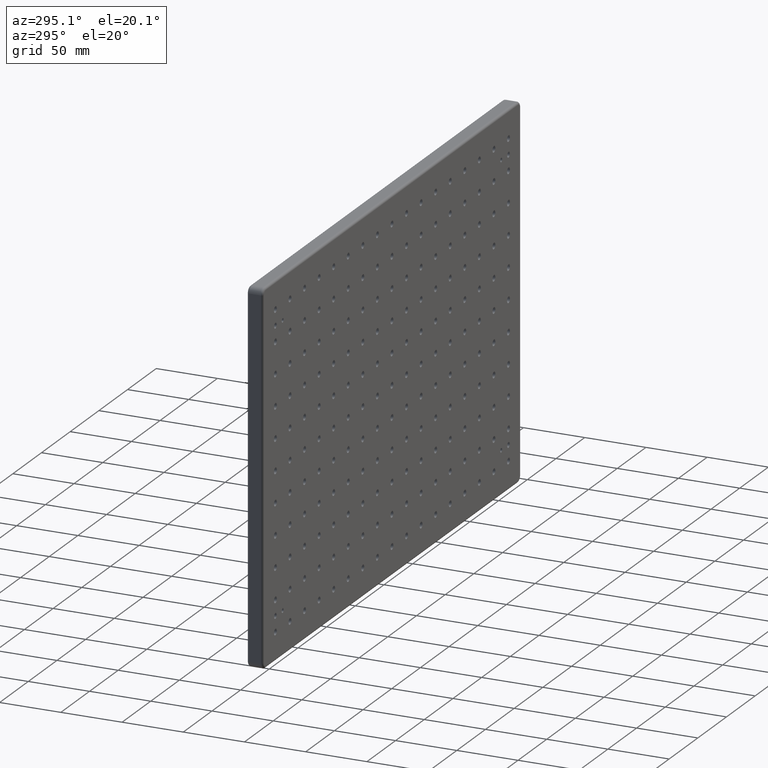
[diagram: clean part render]
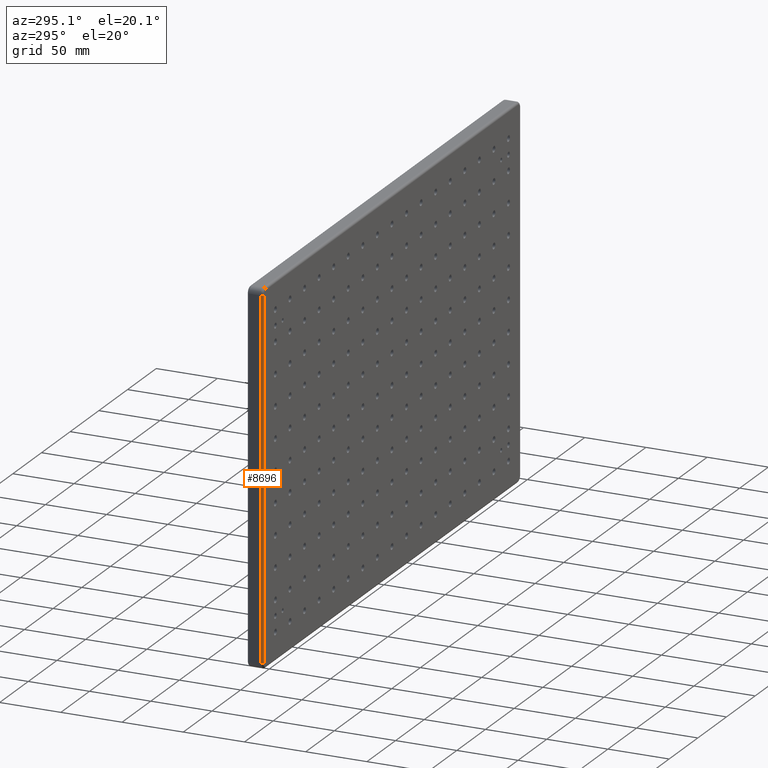
[diagram: same view with one face highlighted and labeled with its STEP entity id]
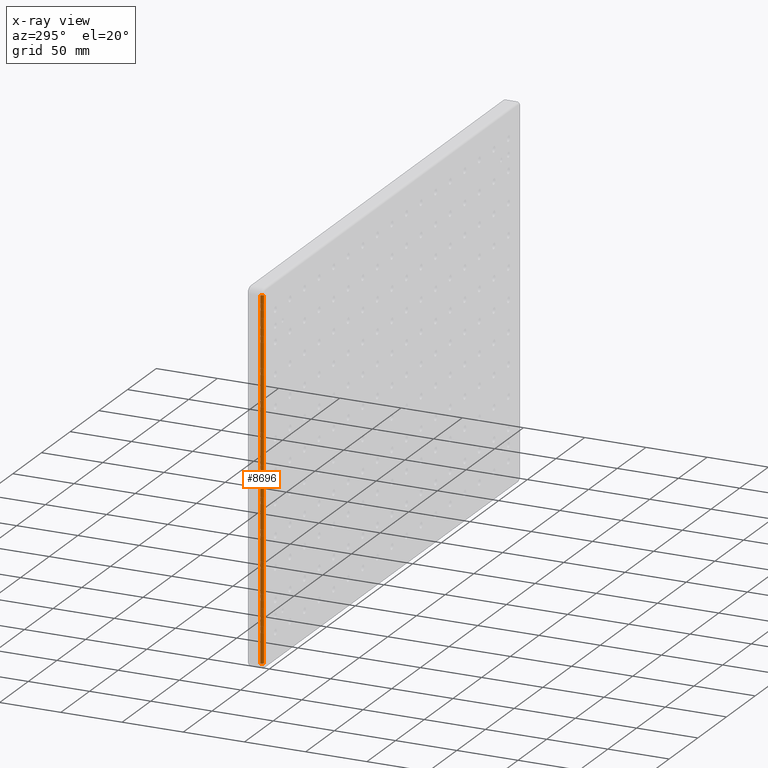
[diagram: x-ray of the same camera — body ghosted, the highlighted face saturated]
A machine part, auxiliary view. The second image highlights one B-rep face of the part: STEP entity #8696.
The next image is the same camera in x-ray: the body ghosted, the highlighted face saturated — about 0% of this face is hidden behind the body in this view.
In plain terms, the highlighted cylindrical surface (edge-blend (fillet) strip) has radius 2 mm, axis along (0, 0, -1).
Its self-contained STEP definition (entity closure, byte-faithful):
#22 = VERTEX_POINT ( 'NONE', #8312 ) ;
#153 = CARTESIAN_POINT ( 'NONE',  ( -225.0000000000000000, -4.500000000000000000, -144.9999999999999400 ) ) ;
#309 = DIRECTION ( 'NONE',  ( 0.0000000000000000000, 0.0000000000000000000, 1.000000000000000000 ) ) ;
#882 = ORIENTED_EDGE ( 'NONE', *, *, #4130, .F. ) ;
#1206 = CIRCLE ( 'NONE', #9687, 2.000000000000001800 ) ;
#1355 = DIRECTION ( 'NONE',  ( 1.000000000000000000, 0.0000000000000000000, 0.0000000000000000000 ) ) ;
#1534 = AXIS2_PLACEMENT_3D ( 'NONE', #13337, #6068, #1355 ) ;
#1704 = LINE ( 'NONE', #4681, #14983 ) ;
#2515 = VERTEX_POINT ( 'NONE', #153 ) ;
#3072 = LINE ( 'NONE', #13783, #12238 ) ;
#3130 = CARTESIAN_POINT ( 'NONE',  ( -223.0000000000000000, -6.500000000000000000, -144.9999999999999400 ) ) ;
#3736 = ORIENTED_EDGE ( 'NONE', *, *, #11860, .F. ) ;
#4130 = EDGE_CURVE ( 'NONE', #2515, #22, #1704, .T. ) ;
#4268 = DIRECTION ( 'NONE',  ( -0.0000000000000000000, -0.0000000000000000000, -1.000000000000000000 ) ) ;
#4681 = CARTESIAN_POINT ( 'NONE',  ( -225.0000000000000000, -4.500000000000000000, 145.0000000000000000 ) ) ;
#4918 = VERTEX_POINT ( 'NONE', #7813 ) ;
#5923 = DIRECTION ( 'NONE',  ( 0.0000000000000000000, 0.0000000000000000000, -1.000000000000000000 ) ) ;
#6068 = DIRECTION ( 'NONE',  ( 0.0000000000000000000, 0.0000000000000000000, 1.000000000000000000 ) ) ;
#6769 = ORIENTED_EDGE ( 'NONE', *, *, #11317, .F. ) ;
#7135 = DIRECTION ( 'NONE',  ( -1.000000000000000000, 0.0000000000000000000, 0.0000000000000000000 ) ) ;
#7303 = EDGE_LOOP ( 'NONE', ( #9950, #3736, #6769, #882 ) ) ;
#7813 = CARTESIAN_POINT ( 'NONE',  ( -223.0000000000000000, -6.500000000000000000, 145.0000000000000000 ) ) ;
#8116 = DIRECTION ( 'NONE',  ( -0.0000000000000000000, 0.0000000000000000000, 1.000000000000000000 ) ) ;
#8214 = CARTESIAN_POINT ( 'NONE',  ( -223.0000000000000000, -4.500000000000000000, 150.0000000000000000 ) ) ;
#8312 = CARTESIAN_POINT ( 'NONE',  ( -225.0000000000000000, -4.500000000000000000, 145.0000000000000000 ) ) ;
#8696 = ADVANCED_FACE ( 'NONE', ( #13296 ), #10471, .T. ) ;
#9687 = AXIS2_PLACEMENT_3D ( 'NONE', #12305, #309, #14753 ) ;
#9950 = ORIENTED_EDGE ( 'NONE', *, *, #14357, .T. ) ;
#10471 = CYLINDRICAL_SURFACE ( 'NONE', #12381, 2.000000000000001800 ) ;
#10773 = CIRCLE ( 'NONE', #1534, 2.000000000000001800 ) ;
#11317 = EDGE_CURVE ( 'NONE', #22, #4918, #1206, .T. ) ;
#11860 = EDGE_CURVE ( 'NONE', #4918, #11979, #3072, .T. ) ;
#11979 = VERTEX_POINT ( 'NONE', #3130 ) ;
#12238 = VECTOR ( 'NONE', #4268, 1000.000000000000000 ) ;
#12305 = CARTESIAN_POINT ( 'NONE',  ( -223.0000000000000000, -4.500000000000000000, 145.0000000000000000 ) ) ;
#12381 = AXIS2_PLACEMENT_3D ( 'NONE', #8214, #5923, #7135 ) ;
#13296 = FACE_OUTER_BOUND ( 'NONE', #7303, .T. ) ;
#13337 = CARTESIAN_POINT ( 'NONE',  ( -223.0000000000000000, -4.500000000000000000, -144.9999999999999400 ) ) ;
#13783 = CARTESIAN_POINT ( 'NONE',  ( -223.0000000000000000, -6.500000000000000000, -144.9999999999999400 ) ) ;
#14357 = EDGE_CURVE ( 'NONE', #2515, #11979, #10773, .T. ) ;
#14753 = DIRECTION ( 'NONE',  ( 1.000000000000000000, 0.0000000000000000000, 0.0000000000000000000 ) ) ;
#14983 = VECTOR ( 'NONE', #8116, 1000.000000000000000 ) ;